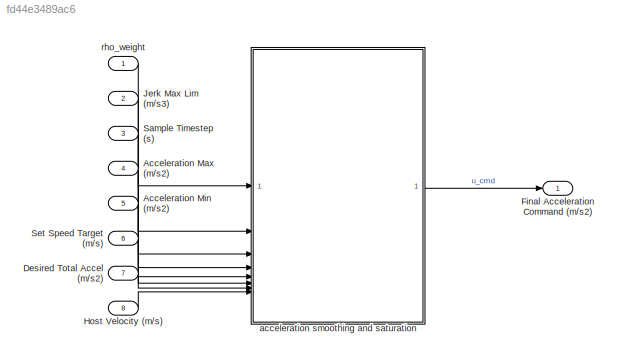
MODEL slx_fd44e3489ac6
KIND model
CONFIG AbsTol = auto
CONFIG EnableMultiTasking = off
CONFIG FixedStep = 0.05
CONFIG MaxStep = auto
CONFIG MinStep = auto
CONFIG RelTol = 1e-3
CONFIG SampleTimeConstraint = Unconstrained
CONFIG SolverName = FixedStepDiscrete
CONFIG StartTime = 0.0
CONFIG StopTime = 10.0
BLOCK [Inport] Acceleration Max (m//s2)
  Port = 4
BLOCK [Inport] Acceleration Min (m//s2)
  Port = 5
BLOCK [Inport] Desired Total Accel (m//s2)
  Port = 7
BLOCK [Outport] Final Acceleration Command (m//s2)
BLOCK [Inport] Host Velocity (m//s)
  Port = 8
BLOCK [Inport] Jerk Max Lim (m//s3)
  Port = 2
BLOCK [Inport] Sample Timestep (s)
  Port = 3
BLOCK [Inport] Set Speed Target (m//s)
  Port = 6
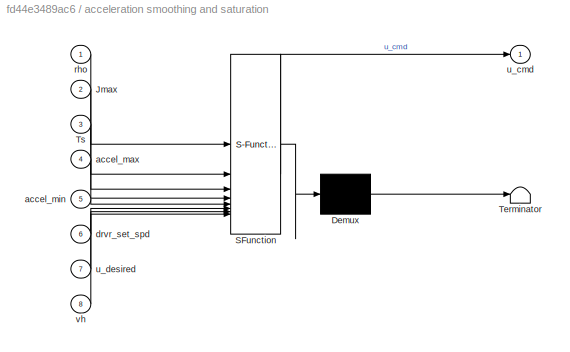
BLOCK [SubSystem] acceleration smoothing and saturation
  ErrorFcn = Stateflow.Translate.translate
  PermitHierarchicalResolution = ExplicitOnly
  SFBlockType = MATLAB Function
  SystemSampleTime = simStepSize
  TreatAsAtomicUnit = on
BLOCK [Demux] acceleration smoothing and saturation/ Demux 
  Outputs = 1
BLOCK [S-Function] acceleration smoothing and saturation/ SFunction 
  EnableBusSupport = on
  FunctionName = sf_sfun
  PortCounts = [8 2]
  SFcnIsStateOwnerBlock = off
  SFunctionDeploymentMode = off
  Tag = Stateflow S-Function 4
BLOCK [Terminator] acceleration smoothing and saturation/ Terminator 
BLOCK [Inport] acceleration smoothing and saturation/Jmax
  Port = 2
BLOCK [Inport] acceleration smoothing and saturation/Ts
  Port = 3
BLOCK [Inport] acceleration smoothing and saturation/accel_max
  Port = 4
BLOCK [Inport] acceleration smoothing and saturation/accel_min
  Port = 5
BLOCK [Inport] acceleration smoothing and saturation/drvr_set_spd
  Port = 6
BLOCK [Inport] acceleration smoothing and saturation/rho
BLOCK [Outport] acceleration smoothing and saturation/u_cmd
BLOCK [Inport] acceleration smoothing and saturation/u_desired
  Port = 7
BLOCK [Inport] acceleration smoothing and saturation/vh
  Port = 8
BLOCK [Inport] rho_weight
LINE Acceleration Max (m//s2):1 -> acceleration smoothing and saturation:4
LINE Acceleration Min (m//s2):1 -> acceleration smoothing and saturation:5
LINE Desired Total Accel (m//s2):1 -> acceleration smoothing and saturation:7
LINE Host Velocity (m//s):1 -> acceleration smoothing and saturation:8
LINE Jerk Max Lim (m//s3):1 -> acceleration smoothing and saturation:2
LINE Sample Timestep (s):1 -> acceleration smoothing and saturation:3
LINE Set Speed Target (m//s):1 -> acceleration smoothing and saturation:6
LINE acceleration smoothing and saturation:1 -> Final Acceleration Command (m//s2):1
LINE rho_weight:1 -> acceleration smoothing and saturation:1
CHART acceleration smoothing and saturation states=1 transitions=1
  STATE_LABEL 'eML_blk_kernel()'
  STATE_LABEL 'SCRIPT:\n% function [u_cmd, here, u_k_min_1] = fcn(rho, Jmax, Ts, accel_max, accel_min, drvr_set_spd, u_desired, vh)\nfunction u_cmd = fcn(rho, Jmax, Ts, accel_max, accel_min, drvr_set_spd, u_desired, vh)\n% This function is the smoothing step that determines a commanded control\n% signal based on minimizing the following QP : J(u) = (u-u_lqr)^2 + rho*(u - uk_minus_1)^2\n% This block also limits the ac...<+1355ch>'
CHART  states=0 transitions=0
